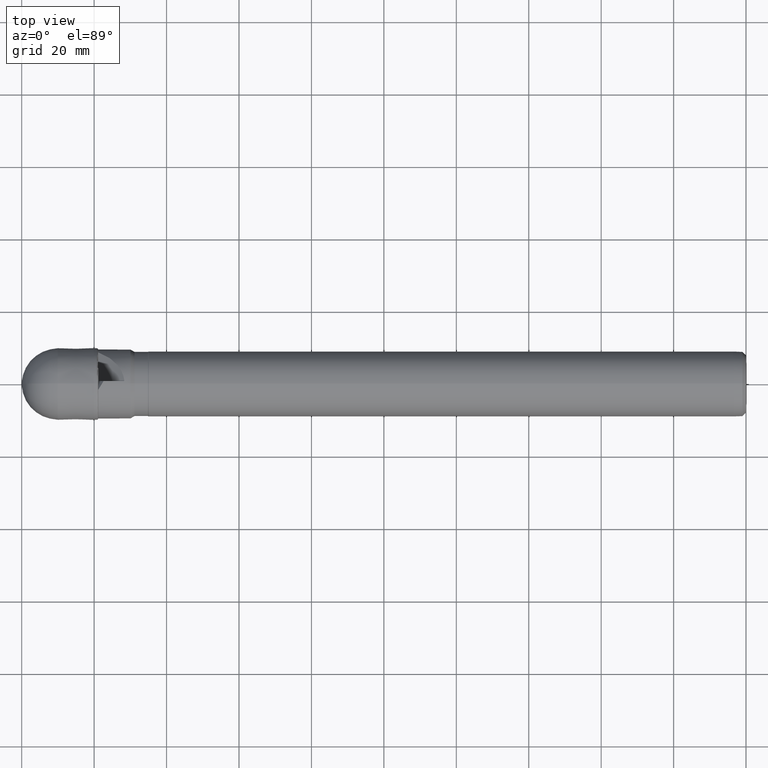
[diagram: clean part render]
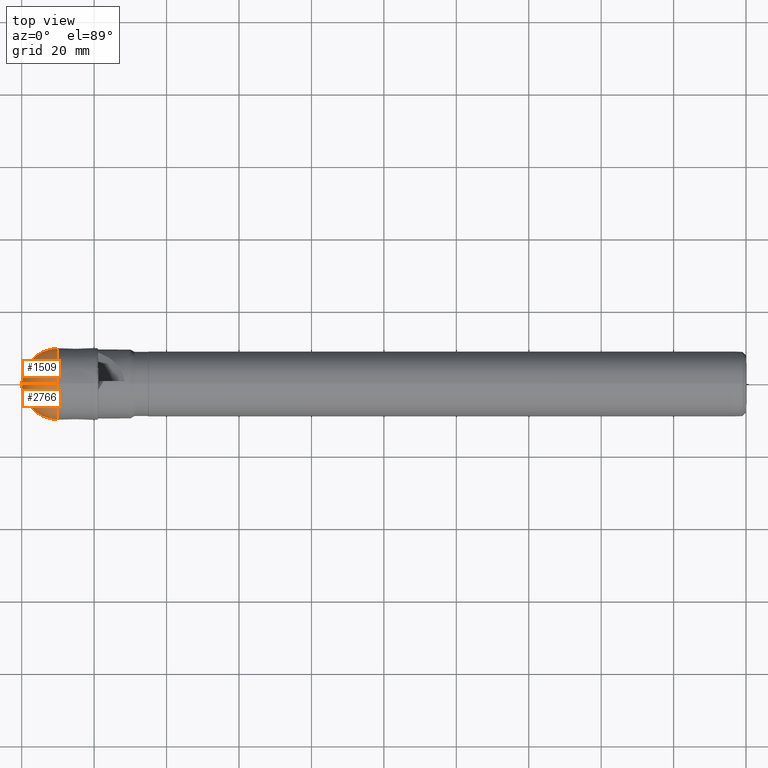
[diagram: same view with one multi-face feature highlighted, each face labeled with its STEP entity id]
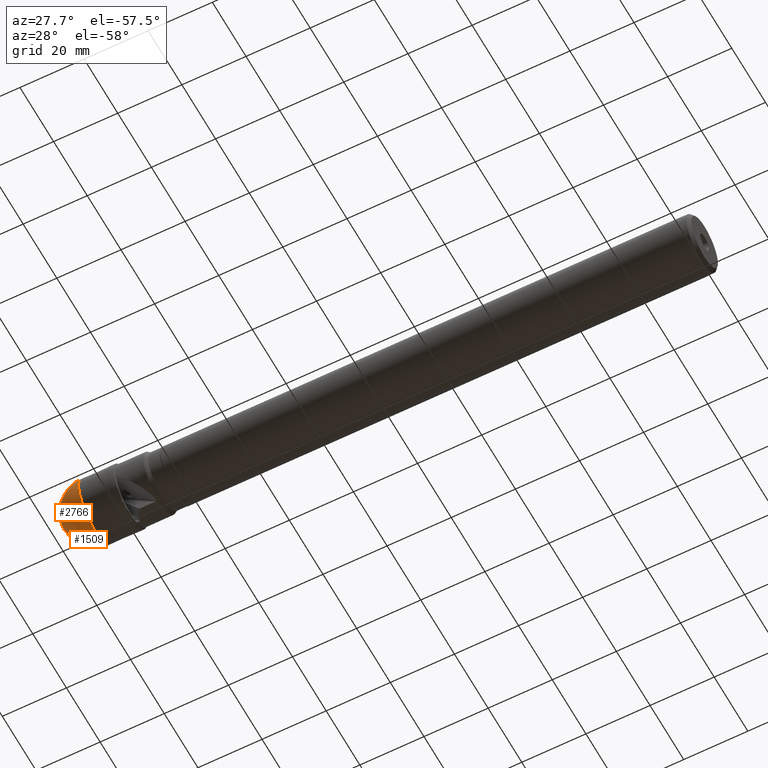
[diagram: same view with one multi-face feature highlighted, each face labeled with its STEP entity id]
A machine part, top view. The highlighted faces form ONE feature: a constant-radius fillet chain: 2 tangent blend faces with common blend radius 9.9865 mm. The faces share edges in the B-rep.
A second angle (auxiliary view) of the same feature is appended — it is thin or edge-on in the first view.
Their STEP definitions:
[1] entity #2766 (Torus):
#178 = EDGE_CURVE ( 'NONE', #1737, #1018, #1093, .T. ) ;
#186 = DIRECTION ( 'NONE',  ( -1.000000000000000000, -0.0000000000000000000, -0.0000000000000000000 ) ) ;
#264 = AXIS2_PLACEMENT_3D ( 'NONE', #1969, #3153, #1622 ) ;
#265 = DIRECTION ( 'NONE',  ( 0.0000000000000000000, 0.0000000000000000000, -1.000000000000000000 ) ) ;
#398 = ORIENTED_EDGE ( 'NONE', *, *, #3063, .F. ) ;
#579 = CARTESIAN_POINT ( 'NONE',  ( 0.03761422047840121130, 5.293040150456055124E-17, -0.4322095280158553265 ) ) ;
#628 = CIRCLE ( 'NONE', #264, 9.986466359142205818 ) ;
#740 = TOROIDAL_SURFACE ( 'NONE', #1337, -0.06875395698491645891, 9.986466359142205818 ) ;
#821 = CIRCLE ( 'NONE', #2151, 9.986466359142205818 ) ;
#837 = FACE_OUTER_BOUND ( 'NONE', #1359, .T. ) ;
#998 = VERTEX_POINT ( 'NONE', #3174 ) ;
#1018 = VERTEX_POINT ( 'NONE', #2857 ) ;
#1093 = CIRCLE ( 'NONE', #2845, 9.917655915778976095 ) ;
#1131 = DIRECTION ( 'NONE',  ( 0.0000000000000000000, 0.0000000000000000000, 1.000000000000000000 ) ) ;
#1260 = ORIENTED_EDGE ( 'NONE', *, *, #2296, .T. ) ;
#1337 = AXIS2_PLACEMENT_3D ( 'NONE', #1528, #2017, #3512 ) ;
#1359 = EDGE_LOOP ( 'NONE', ( #398, #1360, #1260, #2386 ) ) ;
#1360 = ORIENTED_EDGE ( 'NONE', *, *, #178, .T. ) ;
#1528 = CARTESIAN_POINT ( 'NONE',  ( 10.01150743872446647, 0.0000000000000000000, 0.0000000000000000000 ) ) ;
#1604 = CARTESIAN_POINT ( 'NONE',  ( 0.03761422047840121130, 0.0000000000000000000, 0.0000000000000000000 ) ) ;
#1622 = DIRECTION ( 'NONE',  ( 0.0000000000000000000, -1.224646799147352961E-16, 1.000000000000000000 ) ) ;
#1694 = CARTESIAN_POINT ( 'NONE',  ( 9.977918817990545364, 1.214562557230353628E-15, -9.917655915778977871 ) ) ;
#1737 = VERTEX_POINT ( 'NONE', #1694 ) ;
#1969 = CARTESIAN_POINT ( 'NONE',  ( 10.01150743872446647, -8.419931335029275418E-18, 0.06875395698491645891 ) ) ;
#2017 = DIRECTION ( 'NONE',  ( -1.000000000000000000, -0.0000000000000000000, -0.0000000000000000000 ) ) ;
#2098 = VERTEX_POINT ( 'NONE', #579 ) ;
#2151 = AXIS2_PLACEMENT_3D ( 'NONE', #3457, #2500, #265 ) ;
#2270 = DIRECTION ( 'NONE',  ( 0.0000000000000000000, 0.0000000000000000000, 1.000000000000000000 ) ) ;
#2296 = EDGE_CURVE ( 'NONE', #1018, #998, #821, .T. ) ;
#2386 = ORIENTED_EDGE ( 'NONE', *, *, #3286, .F. ) ;
#2500 = DIRECTION ( 'NONE',  ( 0.0000000000000000000, -1.000000000000000000, 0.0000000000000000000 ) ) ;
#2557 = CARTESIAN_POINT ( 'NONE',  ( 9.977918817990545364, 0.0000000000000000000, 0.0000000000000000000 ) ) ;
#2766 = ADVANCED_FACE ( 'NONE', ( #837 ), #740, .T. ) ;
#2845 = AXIS2_PLACEMENT_3D ( 'NONE', #2557, #3738, #1131 ) ;
#2857 = CARTESIAN_POINT ( 'NONE',  ( 9.977918817990545364, 0.0000000000000000000, 9.917655915778977871 ) ) ;
#2955 = AXIS2_PLACEMENT_3D ( 'NONE', #1604, #186, #2270 ) ;
#3063 = EDGE_CURVE ( 'NONE', #1737, #2098, #628, .T. ) ;
#3102 = CIRCLE ( 'NONE', #2955, 0.4322095280158549380 ) ;
#3153 = DIRECTION ( 'NONE',  ( -0.0000000000000000000, 1.000000000000000000, 1.224646799147353207E-16 ) ) ;
#3174 = CARTESIAN_POINT ( 'NONE',  ( 0.03761422047840121130, 0.0000000000000000000, 0.4322095280158553265 ) ) ;
#3286 = EDGE_CURVE ( 'NONE', #2098, #998, #3102, .T. ) ;
#3457 = CARTESIAN_POINT ( 'NONE',  ( 10.01150743872446647, 0.0000000000000000000, -0.06875395698491645891 ) ) ;
#3512 = DIRECTION ( 'NONE',  ( 0.0000000000000000000, 0.0000000000000000000, 1.000000000000000000 ) ) ;
#3738 = DIRECTION ( 'NONE',  ( -1.000000000000000000, -0.0000000000000000000, -0.0000000000000000000 ) ) ;
[2] entity #1509 (Torus):
#55 = EDGE_CURVE ( 'NONE', #1018, #1737, #1611, .T. ) ;
#128 = ORIENTED_EDGE ( 'NONE', *, *, #55, .T. ) ;
#146 = ORIENTED_EDGE ( 'NONE', *, *, #1713, .F. ) ;
#264 = AXIS2_PLACEMENT_3D ( 'NONE', #1969, #3153, #1622 ) ;
#265 = DIRECTION ( 'NONE',  ( 0.0000000000000000000, 0.0000000000000000000, -1.000000000000000000 ) ) ;
#339 = TOROIDAL_SURFACE ( 'NONE', #1527, -0.06875395698491645891, 9.986466359142205818 ) ;
#559 = DIRECTION ( 'NONE',  ( 0.0000000000000000000, 0.0000000000000000000, 1.000000000000000000 ) ) ;
#579 = CARTESIAN_POINT ( 'NONE',  ( 0.03761422047840121130, 5.293040150456055124E-17, -0.4322095280158553265 ) ) ;
#628 = CIRCLE ( 'NONE', #264, 9.986466359142205818 ) ;
#791 = AXIS2_PLACEMENT_3D ( 'NONE', #2410, #1469, #2374 ) ;
#793 = FACE_OUTER_BOUND ( 'NONE', #2972, .T. ) ;
#808 = AXIS2_PLACEMENT_3D ( 'NONE', #1406, #2521, #559 ) ;
#821 = CIRCLE ( 'NONE', #2151, 9.986466359142205818 ) ;
#849 = DIRECTION ( 'NONE',  ( -1.000000000000000000, -0.0000000000000000000, -0.0000000000000000000 ) ) ;
#998 = VERTEX_POINT ( 'NONE', #3174 ) ;
#1018 = VERTEX_POINT ( 'NONE', #2857 ) ;
#1084 = ORIENTED_EDGE ( 'NONE', *, *, #2296, .F. ) ;
#1406 = CARTESIAN_POINT ( 'NONE',  ( 0.03761422047840121130, 0.0000000000000000000, 0.0000000000000000000 ) ) ;
#1469 = DIRECTION ( 'NONE',  ( -1.000000000000000000, -0.0000000000000000000, -0.0000000000000000000 ) ) ;
#1509 = ADVANCED_FACE ( 'NONE', ( #793 ), #339, .T. ) ;
#1527 = AXIS2_PLACEMENT_3D ( 'NONE', #2012, #849, #1987 ) ;
#1611 = CIRCLE ( 'NONE', #791, 9.917655915778976095 ) ;
#1622 = DIRECTION ( 'NONE',  ( 0.0000000000000000000, -1.224646799147352961E-16, 1.000000000000000000 ) ) ;
#1694 = CARTESIAN_POINT ( 'NONE',  ( 9.977918817990545364, 1.214562557230353628E-15, -9.917655915778977871 ) ) ;
#1713 = EDGE_CURVE ( 'NONE', #998, #2098, #2449, .T. ) ;
#1737 = VERTEX_POINT ( 'NONE', #1694 ) ;
#1969 = CARTESIAN_POINT ( 'NONE',  ( 10.01150743872446647, -8.419931335029275418E-18, 0.06875395698491645891 ) ) ;
#1987 = DIRECTION ( 'NONE',  ( 0.0000000000000000000, 0.0000000000000000000, 1.000000000000000000 ) ) ;
#2012 = CARTESIAN_POINT ( 'NONE',  ( 10.01150743872446647, 0.0000000000000000000, 0.0000000000000000000 ) ) ;
#2098 = VERTEX_POINT ( 'NONE', #579 ) ;
#2151 = AXIS2_PLACEMENT_3D ( 'NONE', #3457, #2500, #265 ) ;
#2296 = EDGE_CURVE ( 'NONE', #1018, #998, #821, .T. ) ;
#2374 = DIRECTION ( 'NONE',  ( 0.0000000000000000000, 0.0000000000000000000, 1.000000000000000000 ) ) ;
#2410 = CARTESIAN_POINT ( 'NONE',  ( 9.977918817990545364, 0.0000000000000000000, 0.0000000000000000000 ) ) ;
#2449 = CIRCLE ( 'NONE', #808, 0.4322095280158549380 ) ;
#2500 = DIRECTION ( 'NONE',  ( 0.0000000000000000000, -1.000000000000000000, 0.0000000000000000000 ) ) ;
#2521 = DIRECTION ( 'NONE',  ( -1.000000000000000000, -0.0000000000000000000, -0.0000000000000000000 ) ) ;
#2524 = ORIENTED_EDGE ( 'NONE', *, *, #3063, .T. ) ;
#2857 = CARTESIAN_POINT ( 'NONE',  ( 9.977918817990545364, 0.0000000000000000000, 9.917655915778977871 ) ) ;
#2972 = EDGE_LOOP ( 'NONE', ( #128, #2524, #146, #1084 ) ) ;
#3063 = EDGE_CURVE ( 'NONE', #1737, #2098, #628, .T. ) ;
#3153 = DIRECTION ( 'NONE',  ( -0.0000000000000000000, 1.000000000000000000, 1.224646799147353207E-16 ) ) ;
#3174 = CARTESIAN_POINT ( 'NONE',  ( 0.03761422047840121130, 0.0000000000000000000, 0.4322095280158553265 ) ) ;
#3457 = CARTESIAN_POINT ( 'NONE',  ( 10.01150743872446647, 0.0000000000000000000, -0.06875395698491645891 ) ) ;